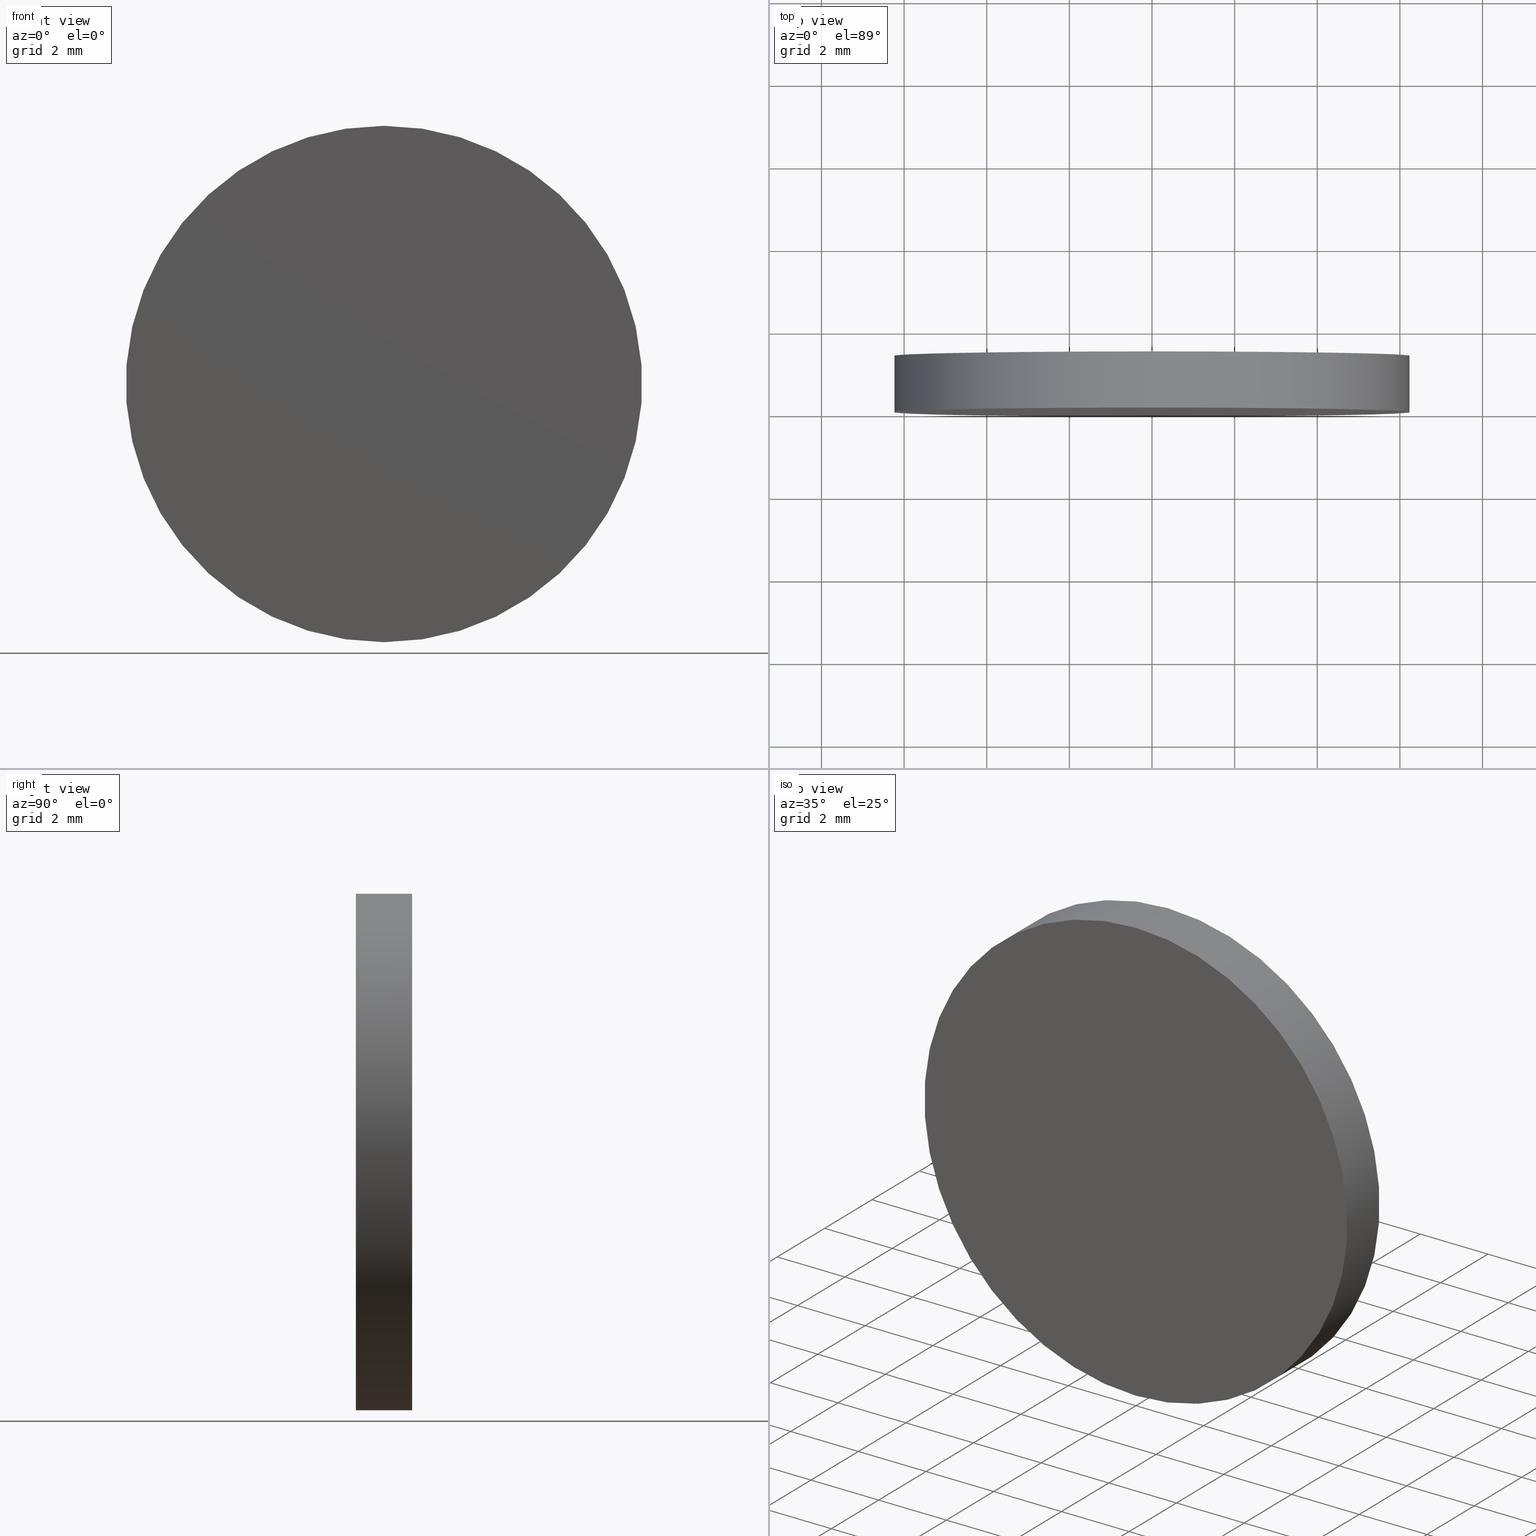
[diagram: canonical four-view strip — front | top / right | iso, engineering-drawing reading convention]
A machine part, canonical four-view strip (front | top / right | iso — engineering-drawing reading convention). The complete STEP part file that produces these views, byte-faithful:
ISO-10303-21;
HEADER;
FILE_DESCRIPTION (( 'STEP AP214' ),
    '1' );
FILE_NAME ('248570.STEP',
    '2019-08-02T08:25:25',
    ( 'user' ),
    ( '΢���й�' ),
    'SwSTEP 2.0',
    'SolidWorks 2016',
    '' );
FILE_SCHEMA (( 'AUTOMOTIVE_DESIGN' ));
ENDSEC;

DATA;
#1 = FILL_AREA_STYLE_COLOUR ( '', #79 ) ;
#2 = VERTEX_POINT ( 'NONE', #96 ) ;
#3 = STYLED_ITEM ( 'NONE', ( #94 ), #128 ) ;
#4 = SURFACE_STYLE_FILL_AREA ( #136 ) ;
#5 = PRODUCT_DEFINITION_CONTEXT ( 'detailed design', #19, 'design' ) ;
#6 = CIRCLE ( 'NONE', #93, 6.250000000000000000 ) ;
#7 = EDGE_LOOP ( 'NONE', ( #26, #88, #37, #138 ) ) ;
#8 = SURFACE_SIDE_STYLE ('',( #68 ) ) ;
#9 =( NAMED_UNIT ( * ) SI_UNIT ( $, .STERADIAN. ) SOLID_ANGLE_UNIT ( ) );
#10 = PLANE ( 'NONE',  #86 ) ;
#11 = DIRECTION ( 'NONE',  ( 0.0000000000000000000, 0.0000000000000000000, 1.000000000000000000 ) ) ;
#12 = AXIS2_PLACEMENT_3D ( 'NONE', #89, #91, #139 ) ;
#13 = CIRCLE ( 'NONE', #81, 6.250000000000000000 ) ;
#14 = CARTESIAN_POINT ( 'NONE',  ( 7.654042494670957600E-016, 1.360000000000000100, 6.250000000000000000 ) ) ;
#15 = EDGE_LOOP ( 'NONE', ( #120, #116 ) ) ;
#16 = EDGE_LOOP ( 'NONE', ( #101, #83, #50, #40 ) ) ;
#17 = CIRCLE ( 'NONE', #69, 6.250000000000000000 ) ;
#18 = AXIS2_PLACEMENT_3D ( 'NONE', #76, #103, #90 ) ;
#19 = APPLICATION_CONTEXT ( 'automotive_design' ) ;
#20 = EDGE_LOOP ( 'NONE', ( #107, #129 ) ) ;
#21 =( GEOMETRIC_REPRESENTATION_CONTEXT ( 3 ) GLOBAL_UNCERTAINTY_ASSIGNED_CONTEXT ( ( #43 ) ) GLOBAL_UNIT_ASSIGNED_CONTEXT ( ( #41, #135, #53 ) ) REPRESENTATION_CONTEXT ( 'NONE', 'WORKASPACE' ) );
#22 = PRESENTATION_STYLE_ASSIGNMENT (( #99 ) ) ;
#23 = MANIFOLD_SOLID_BREP ( '͹̨-����1', #57 ) ;
#24 = CARTESIAN_POINT ( 'NONE',  ( 0.0000000000000000000, 1.360000000000000100, 0.0000000000000000000 ) ) ;
#25 = PRESENTATION_LAYER_ASSIGNMENT (  '', '', ( #3 ) ) ;
#26 = ORIENTED_EDGE ( 'NONE', *, *, #73, .F. ) ;
#27 = DIRECTION ( 'NONE',  ( 0.0000000000000000000, -0.0000000000000000000, 1.000000000000000000 ) ) ;
#28 = FACE_OUTER_BOUND ( 'NONE', #15, .T. ) ;
#29 = DIRECTION ( 'NONE',  ( 0.0000000000000000000, 1.000000000000000000, 0.0000000000000000000 ) ) ;
#30 = DIRECTION ( 'NONE',  ( 0.0000000000000000000, 1.000000000000000000, 0.0000000000000000000 ) ) ;
#31 = APPLICATION_CONTEXT ( 'automotive_design' ) ;
#32 = DIRECTION ( 'NONE',  ( 0.0000000000000000000, 1.000000000000000000, 0.0000000000000000000 ) ) ;
#33 = CARTESIAN_POINT ( 'NONE',  ( 0.0000000000000000000, 1.360000000000000100, 0.0000000000000000000 ) ) ;
#34 = EDGE_CURVE ( 'NONE', #47, #2, #17, .T. ) ;
#35 = PRODUCT ( '248570', '248570', '', ( #82 ) ) ;
#36 = ADVANCED_FACE ( 'NONE', ( #46 ), #10, .T. ) ;
#37 = ORIENTED_EDGE ( 'NONE', *, *, #34, .T. ) ;
#38 =( GEOMETRIC_REPRESENTATION_CONTEXT ( 3 ) GLOBAL_UNCERTAINTY_ASSIGNED_CONTEXT ( ( #104 ) ) GLOBAL_UNIT_ASSIGNED_CONTEXT ( ( #115, #55, #126 ) ) REPRESENTATION_CONTEXT ( 'NONE', 'WORKASPACE' ) );
#39 = AXIS2_PLACEMENT_3D ( 'NONE', #74, #111, #27 ) ;
#40 = ORIENTED_EDGE ( 'NONE', *, *, #64, .T. ) ;
#41 =( LENGTH_UNIT ( ) NAMED_UNIT ( * ) SI_UNIT ( .MILLI., .METRE. ) );
#42 = STYLED_ITEM ( 'NONE', ( #22 ), #23 ) ;
#43 = UNCERTAINTY_MEASURE_WITH_UNIT (LENGTH_MEASURE( 1.000000000000000100E-005 ), #41, 'distance_accuracy_value', 'NONE');
#44 = FILL_AREA_STYLE_COLOUR ( '', #133 ) ;
#45 = EDGE_CURVE ( 'NONE', #114, #2, #102, .T. ) ;
#46 = FACE_OUTER_BOUND ( 'NONE', #20, .T. ) ;
#47 = VERTEX_POINT ( 'NONE', #112 ) ;
#48 = PRESENTATION_LAYER_ASSIGNMENT (  '', '', ( #42 ) ) ;
#49 = DIRECTION ( 'NONE',  ( 0.0000000000000000000, 0.0000000000000000000, -1.000000000000000000 ) ) ;
#50 = ORIENTED_EDGE ( 'NONE', *, *, #45, .T. ) ;
#51 = CYLINDRICAL_SURFACE ( 'NONE', #130, 6.250000000000000000 ) ;
#52 = EDGE_CURVE ( 'NONE', #114, #124, #13, .T. ) ;
#53 =( NAMED_UNIT ( * ) SI_UNIT ( $, .STERADIAN. ) SOLID_ANGLE_UNIT ( ) );
#54 = DIRECTION ( 'NONE',  ( 0.0000000000000000000, 0.0000000000000000000, 1.000000000000000000 ) ) ;
#55 =( NAMED_UNIT ( * ) PLANE_ANGLE_UNIT ( ) SI_UNIT ( $, .RADIAN. ) );
#56 = MECHANICAL_DESIGN_GEOMETRIC_PRESENTATION_REPRESENTATION (  '', ( #42 ), #61 ) ;
#57 = CLOSED_SHELL ( 'NONE', ( #65, #92, #36, #106 ) ) ;
#58 = DIRECTION ( 'NONE',  ( 0.0000000000000000000, 1.000000000000000000, 0.0000000000000000000 ) ) ;
#59 = CYLINDRICAL_SURFACE ( 'NONE', #18, 6.250000000000000000 ) ;
#60 = SURFACE_SIDE_STYLE ('',( #4 ) ) ;
#61 =( GEOMETRIC_REPRESENTATION_CONTEXT ( 3 ) GLOBAL_UNCERTAINTY_ASSIGNED_CONTEXT ( ( #66 ) ) GLOBAL_UNIT_ASSIGNED_CONTEXT ( ( #132, #118, #9 ) ) REPRESENTATION_CONTEXT ( 'NONE', 'WORKASPACE' ) );
#62 = CARTESIAN_POINT ( 'NONE',  ( 0.0000000000000000000, 1.360000000000000100, -6.250000000000000000 ) ) ;
#63 = DIRECTION ( 'NONE',  ( -0.0000000000000000000, -1.000000000000000000, -0.0000000000000000000 ) ) ;
#64 = EDGE_CURVE ( 'NONE', #2, #47, #6, .T. ) ;
#65 = ADVANCED_FACE ( 'NONE', ( #95 ), #51, .T. ) ;
#66 = UNCERTAINTY_MEASURE_WITH_UNIT (LENGTH_MEASURE( 1.000000000000000100E-005 ), #132, 'distance_accuracy_value', 'NONE');
#67 = MECHANICAL_DESIGN_GEOMETRIC_PRESENTATION_REPRESENTATION (  '', ( #3 ), #38 ) ;
#68 = SURFACE_STYLE_FILL_AREA ( #140 ) ;
#69 = AXIS2_PLACEMENT_3D ( 'NONE', #134, #32, #97 ) ;
#70 = CARTESIAN_POINT ( 'NONE',  ( 0.0000000000000000000, 0.0000000000000000000, 0.0000000000000000000 ) ) ;
#71 = EDGE_CURVE ( 'NONE', #124, #47, #131, .T. ) ;
#72 = CARTESIAN_POINT ( 'NONE',  ( 0.0000000000000000000, 1.360000000000000100, 0.0000000000000000000 ) ) ;
#73 = EDGE_CURVE ( 'NONE', #124, #114, #109, .T. ) ;
#74 = CARTESIAN_POINT ( 'NONE',  ( 0.0000000000000000000, 0.0000000000000000000, 0.0000000000000000000 ) ) ;
#75 = DIRECTION ( 'NONE',  ( 0.0000000000000000000, 0.0000000000000000000, 1.000000000000000000 ) ) ;
#76 = CARTESIAN_POINT ( 'NONE',  ( 0.0000000000000000000, 1.360000000000000100, 0.0000000000000000000 ) ) ;
#77 = DIRECTION ( 'NONE',  ( -0.0000000000000000000, -1.000000000000000000, -0.0000000000000000000 ) ) ;
#78 = APPLICATION_PROTOCOL_DEFINITION ( 'draft international standard', 'automotive_design', 1998, #31 ) ;
#79 = COLOUR_RGB ( '',1.000000000000000000, 1.000000000000000000, 1.000000000000000000 ) ;
#80 = DIRECTION ( 'NONE',  ( 0.0000000000000000000, -0.0000000000000000000, 1.000000000000000000 ) ) ;
#81 = AXIS2_PLACEMENT_3D ( 'NONE', #123, #58, #54 ) ;
#82 = PRODUCT_CONTEXT ( 'NONE', #31, 'mechanical' ) ;
#83 = ORIENTED_EDGE ( 'NONE', *, *, #52, .F. ) ;
#84 = PRODUCT_RELATED_PRODUCT_CATEGORY ( 'part', '', ( #35 ) ) ;
#85 = CARTESIAN_POINT ( 'NONE',  ( 7.654042494670957600E-016, 1.360000000000000100, 6.250000000000000000 ) ) ;
#86 = AXIS2_PLACEMENT_3D ( 'NONE', #33, #30, #80 ) ;
#87 = DIRECTION ( 'NONE',  ( -0.0000000000000000000, -1.000000000000000000, -0.0000000000000000000 ) ) ;
#88 = ORIENTED_EDGE ( 'NONE', *, *, #71, .T. ) ;
#89 = CARTESIAN_POINT ( 'NONE',  ( 0.0000000000000000000, 0.0000000000000000000, 0.0000000000000000000 ) ) ;
#90 = DIRECTION ( 'NONE',  ( 0.0000000000000000000, 0.0000000000000000000, -1.000000000000000000 ) ) ;
#91 = DIRECTION ( 'NONE',  ( 0.0000000000000000000, 0.0000000000000000000, 1.000000000000000000 ) ) ;
#92 = ADVANCED_FACE ( 'NONE', ( #121 ), #59, .T. ) ;
#93 = AXIS2_PLACEMENT_3D ( 'NONE', #70, #29, #75 ) ;
#94 = PRESENTATION_STYLE_ASSIGNMENT (( #125 ) ) ;
#95 = FACE_OUTER_BOUND ( 'NONE', #7, .T. ) ;
#96 = CARTESIAN_POINT ( 'NONE',  ( 0.0000000000000000000, 0.0000000000000000000, -6.250000000000000000 ) ) ;
#97 = DIRECTION ( 'NONE',  ( 0.0000000000000000000, 0.0000000000000000000, 1.000000000000000000 ) ) ;
#98 = VECTOR ( 'NONE', #77, 1000.000000000000000 ) ;
#99 = SURFACE_STYLE_USAGE ( .BOTH. , #8 ) ;
#100 = PRODUCT_DEFINITION ( 'δ֪', '', #108, #5 ) ;
#101 = ORIENTED_EDGE ( 'NONE', *, *, #71, .F. ) ;
#102 = LINE ( 'NONE', #62, #98 ) ;
#103 = DIRECTION ( 'NONE',  ( -0.0000000000000000000, -1.000000000000000000, -0.0000000000000000000 ) ) ;
#104 = UNCERTAINTY_MEASURE_WITH_UNIT (LENGTH_MEASURE( 1.000000000000000100E-005 ), #115, 'distance_accuracy_value', 'NONE');
#105 = APPLICATION_PROTOCOL_DEFINITION ( 'draft international standard', 'automotive_design', 1998, #19 ) ;
#106 = ADVANCED_FACE ( 'NONE', ( #28 ), #119, .F. ) ;
#107 = ORIENTED_EDGE ( 'NONE', *, *, #52, .T. ) ;
#108 = PRODUCT_DEFINITION_FORMATION_WITH_SPECIFIED_SOURCE ( '�κ�', '', #35, .NOT_KNOWN. ) ;
#109 = CIRCLE ( 'NONE', #110, 6.250000000000000000 ) ;
#110 = AXIS2_PLACEMENT_3D ( 'NONE', #72, #137, #11 ) ;
#111 = DIRECTION ( 'NONE',  ( 0.0000000000000000000, 1.000000000000000000, 0.0000000000000000000 ) ) ;
#112 = CARTESIAN_POINT ( 'NONE',  ( 7.654042494670957600E-016, 0.0000000000000000000, 6.250000000000000000 ) ) ;
#113 = CARTESIAN_POINT ( 'NONE',  ( 0.0000000000000000000, 1.360000000000000100, -6.250000000000000000 ) ) ;
#114 = VERTEX_POINT ( 'NONE', #113 ) ;
#115 =( LENGTH_UNIT ( ) NAMED_UNIT ( * ) SI_UNIT ( .MILLI., .METRE. ) );
#116 = ORIENTED_EDGE ( 'NONE', *, *, #34, .F. ) ;
#117 = SHAPE_DEFINITION_REPRESENTATION ( #122, #128 ) ;
#118 =( NAMED_UNIT ( * ) PLANE_ANGLE_UNIT ( ) SI_UNIT ( $, .RADIAN. ) );
#119 = PLANE ( 'NONE',  #39 ) ;
#120 = ORIENTED_EDGE ( 'NONE', *, *, #64, .F. ) ;
#121 = FACE_OUTER_BOUND ( 'NONE', #16, .T. ) ;
#122 = PRODUCT_DEFINITION_SHAPE ( 'NONE', 'NONE',  #100 ) ;
#123 = CARTESIAN_POINT ( 'NONE',  ( 0.0000000000000000000, 1.360000000000000100, 0.0000000000000000000 ) ) ;
#124 = VERTEX_POINT ( 'NONE', #14 ) ;
#125 = SURFACE_STYLE_USAGE ( .BOTH. , #60 ) ;
#126 =( NAMED_UNIT ( * ) SI_UNIT ( $, .STERADIAN. ) SOLID_ANGLE_UNIT ( ) );
#127 = VECTOR ( 'NONE', #87, 1000.000000000000000 ) ;
#128 = ADVANCED_BREP_SHAPE_REPRESENTATION ( '248570', ( #23, #12 ), #21 ) ;
#129 = ORIENTED_EDGE ( 'NONE', *, *, #73, .T. ) ;
#130 = AXIS2_PLACEMENT_3D ( 'NONE', #24, #63, #49 ) ;
#131 = LINE ( 'NONE', #85, #127 ) ;
#132 =( LENGTH_UNIT ( ) NAMED_UNIT ( * ) SI_UNIT ( .MILLI., .METRE. ) );
#133 = COLOUR_RGB ( '',1.000000000000000000, 1.000000000000000000, 1.000000000000000000 ) ;
#134 = CARTESIAN_POINT ( 'NONE',  ( 0.0000000000000000000, 0.0000000000000000000, 0.0000000000000000000 ) ) ;
#135 =( NAMED_UNIT ( * ) PLANE_ANGLE_UNIT ( ) SI_UNIT ( $, .RADIAN. ) );
#136 = FILL_AREA_STYLE ('',( #44 ) ) ;
#137 = DIRECTION ( 'NONE',  ( 0.0000000000000000000, 1.000000000000000000, 0.0000000000000000000 ) ) ;
#138 = ORIENTED_EDGE ( 'NONE', *, *, #45, .F. ) ;
#139 = DIRECTION ( 'NONE',  ( 1.000000000000000000, 0.0000000000000000000, 0.0000000000000000000 ) ) ;
#140 = FILL_AREA_STYLE ('',( #1 ) ) ;
ENDSEC;
END-ISO-10303-21;
